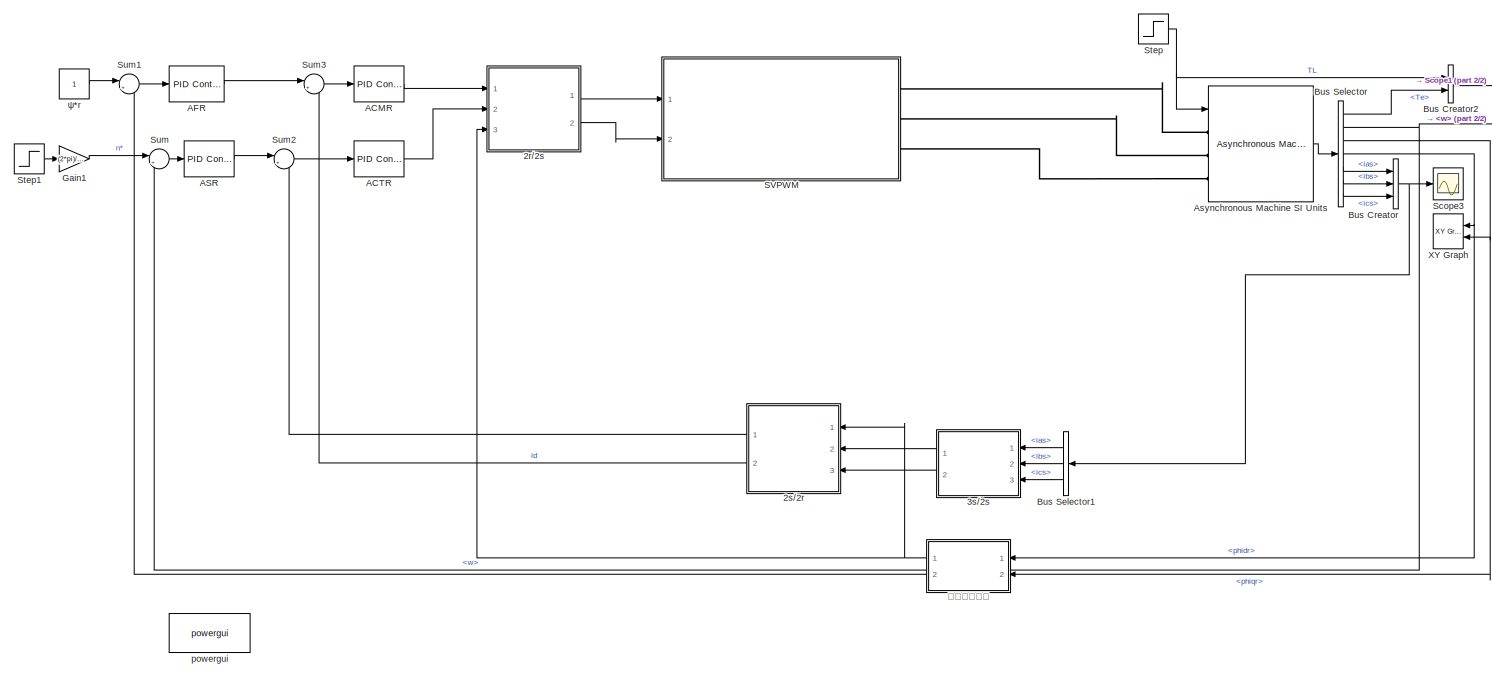
[diagram: root canvas - part 1/2, most of the canvas]
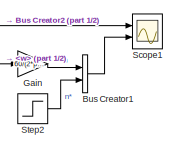
[diagram: root canvas - part 2/2, top right region]
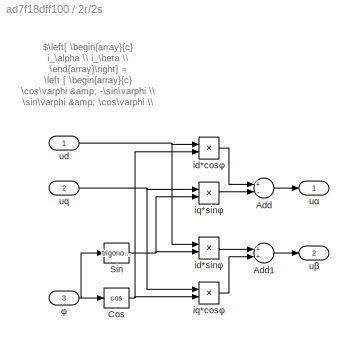
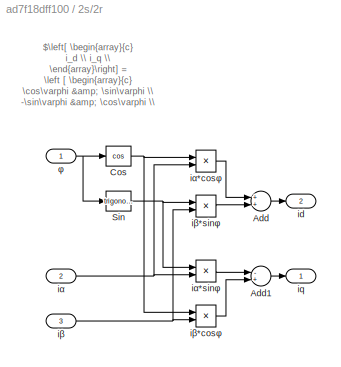
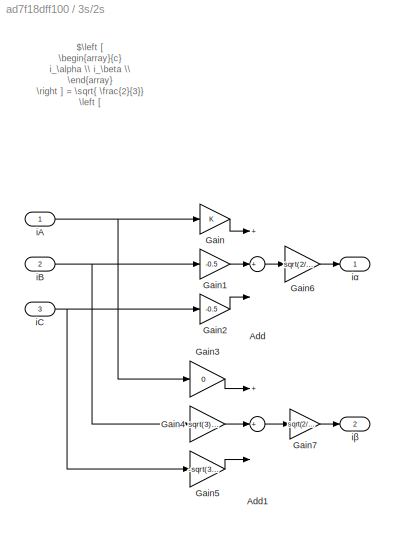
MODEL slx_ad7f18dff100
KIND model
CONFIG AbsTol = auto
CONFIG EnableMultiTasking = off
CONFIG FixedStep = auto
CONFIG MaxStep = 0.00001
CONFIG MinStep = auto
CONFIG RelTol = 1e-3
CONFIG SampleTimeConstraint = Unconstrained
CONFIG Solver = ode23tb
CONFIG SolverName = ode23tb
CONFIG StartTime = 0.0
CONFIG StopTime = 1
BLOCK [SubSystem] 2r//2s
  Ports = [3, 2]
  RequestExecContextInheritance = off
BLOCK [Sum] 2r//2s/Add
  InputSameDT = off
  Inputs = +-
  OutDataTypeStr = Inherit: Inherit via internal rule
  Ports = [2, 1]
  SaturateOnIntegerOverflow = off
BLOCK [Sum] 2r//2s/Add1
  InputSameDT = off
  OutDataTypeStr = Inherit: Inherit via internal rule
  Ports = [2, 1]
  SaturateOnIntegerOverflow = off
BLOCK [Trigonometry] 2r//2s/Cos
  Operator = cos
  Ports = [1, 1]
BLOCK [Trigonometry] 2r//2s/Sin
  Ports = [1, 1]
BLOCK [Product] 2r//2s/id*cosφ
  InputSameDT = off
  OutDataTypeStr = Inherit: Inherit via internal rule
  Ports = [2, 1]
  RndMeth = Floor
  SaturateOnIntegerOverflow = off
BLOCK [Product] 2r//2s/id*sinφ
  InputSameDT = off
  OutDataTypeStr = Inherit: Inherit via internal rule
  Ports = [2, 1]
  RndMeth = Floor
  SaturateOnIntegerOverflow = off
BLOCK [Product] 2r//2s/iq*cosφ
  InputSameDT = off
  OutDataTypeStr = Inherit: Inherit via internal rule
  Ports = [2, 1]
  RndMeth = Floor
  SaturateOnIntegerOverflow = off
BLOCK [Product] 2r//2s/iq*sinφ
  InputSameDT = off
  OutDataTypeStr = Inherit: Inherit via internal rule
  Ports = [2, 1]
  RndMeth = Floor
  SaturateOnIntegerOverflow = off
BLOCK [Inport] 2r//2s/ud
  IconDisplay = Port number
BLOCK [Inport] 2r//2s/uq
  IconDisplay = Port number
  Port = 2
BLOCK [Outport] 2r//2s/uα
  IconDisplay = Port number
BLOCK [Outport] 2r//2s/uβ
  IconDisplay = Port number
  Port = 2
BLOCK [Inport] 2r//2s/φ
  IconDisplay = Port number
  Port = 3
BLOCK [SubSystem] 2s//2r
  Ports = [3, 2]
  RequestExecContextInheritance = off
BLOCK [Sum] 2s//2r/Add
  InputSameDT = off
  OutDataTypeStr = Inherit: Inherit via internal rule
  Ports = [2, 1]
  SaturateOnIntegerOverflow = off
BLOCK [Sum] 2s//2r/Add1
  InputSameDT = off
  Inputs = -+
  OutDataTypeStr = Inherit: Inherit via internal rule
  Ports = [2, 1]
  SaturateOnIntegerOverflow = off
BLOCK [Trigonometry] 2s//2r/Cos
  Operator = cos
  Ports = [1, 1]
BLOCK [Trigonometry] 2s//2r/Sin
  Ports = [1, 1]
BLOCK [Outport] 2s//2r/id
  IconDisplay = Port number
  Port = 2
BLOCK [Outport] 2s//2r/iq
  IconDisplay = Port number
BLOCK [Inport] 2s//2r/iα
  IconDisplay = Port number
  Port = 2
BLOCK [Product] 2s//2r/iα*cosφ
  InputSameDT = off
  OutDataTypeStr = Inherit: Inherit via internal rule
  Ports = [2, 1]
  RndMeth = Floor
  SaturateOnIntegerOverflow = off
BLOCK [Product] 2s//2r/iα*sinφ
  InputSameDT = off
  OutDataTypeStr = Inherit: Inherit via internal rule
  Ports = [2, 1]
  RndMeth = Floor
  SaturateOnIntegerOverflow = off
BLOCK [Inport] 2s//2r/iβ
  IconDisplay = Port number
  Port = 3
BLOCK [Product] 2s//2r/iβ*cosφ
  InputSameDT = off
  OutDataTypeStr = Inherit: Inherit via internal rule
  Ports = [2, 1]
  RndMeth = Floor
  SaturateOnIntegerOverflow = off
BLOCK [Product] 2s//2r/iβ*sinφ
  InputSameDT = off
  OutDataTypeStr = Inherit: Inherit via internal rule
  Ports = [2, 1]
  RndMeth = Floor
  SaturateOnIntegerOverflow = off
BLOCK [Inport] 2s//2r/φ
  IconDisplay = Port number
BLOCK [SubSystem] 3s//2s
  Ports = [3, 2]
  RequestExecContextInheritance = off
BLOCK [Sum] 3s//2s/Add
  InputSameDT = off
  Inputs = 3
  OutDataTypeStr = Inherit: Inherit via internal rule
  Ports = [3, 1]
  SaturateOnIntegerOverflow = off
BLOCK [Sum] 3s//2s/Add1
  InputSameDT = off
  Inputs = 3
  OutDataTypeStr = Inherit: Inherit via internal rule
  Ports = [3, 1]
  SaturateOnIntegerOverflow = off
BLOCK [Gain] 3s//2s/Gain
  OutDataTypeStr = Inherit: Inherit via internal rule
  ParamDataTypeStr = Inherit: Inherit via internal rule
  SaturateOnIntegerOverflow = off
BLOCK [Gain] 3s//2s/Gain1
  Gain = -0.5
  OutDataTypeStr = Inherit: Inherit via internal rule
  ParamDataTypeStr = Inherit: Inherit via internal rule
  SaturateOnIntegerOverflow = off
BLOCK [Gain] 3s//2s/Gain2
  Gain = -0.5
  OutDataTypeStr = Inherit: Inherit via internal rule
  ParamDataTypeStr = Inherit: Inherit via internal rule
  SaturateOnIntegerOverflow = off
BLOCK [Gain] 3s//2s/Gain3
  Gain = 0
  OutDataTypeStr = Inherit: Inherit via internal rule
  ParamDataTypeStr = Inherit: Inherit via internal rule
  SaturateOnIntegerOverflow = off
BLOCK [Gain] 3s//2s/Gain4
  Gain = sqrt(3)/2
  OutDataTypeStr = Inherit: Inherit via internal rule
  ParamDataTypeStr = Inherit: Inherit via internal rule
  SaturateOnIntegerOverflow = off
BLOCK [Gain] 3s//2s/Gain5
  Gain = -sqrt(3)/2
  OutDataTypeStr = Inherit: Inherit via internal rule
  ParamDataTypeStr = Inherit: Inherit via internal rule
  SaturateOnIntegerOverflow = off
BLOCK [Gain] 3s//2s/Gain6
  Gain = sqrt(2/3)
  OutDataTypeStr = Inherit: Inherit via internal rule
  ParamDataTypeStr = Inherit: Inherit via internal rule
  SaturateOnIntegerOverflow = off
BLOCK [Gain] 3s//2s/Gain7
  Gain = sqrt(2/3)
  OutDataTypeStr = Inherit: Inherit via internal rule
  ParamDataTypeStr = Inherit: Inherit via internal rule
  SaturateOnIntegerOverflow = off
BLOCK [Inport] 3s//2s/iA
  IconDisplay = Port number
BLOCK [Inport] 3s//2s/iB
  IconDisplay = Port number
  Port = 2
BLOCK [Inport] 3s//2s/iC
  IconDisplay = Port number
  Port = 3
BLOCK [Outport] 3s//2s/iα
  IconDisplay = Port number
BLOCK [Outport] 3s//2s/iβ
  IconDisplay = Port number
  Port = 2
BLOCK [Reference] ACMR  REF=simulink/Continuous/PID Controller
  Ports = [1, 1]
  SourceBlock = simulink/Continuous/PID Controller
  SourceProductBaseCode = SL
  SourceProductName = Simulink
  SourceType = PID 1dof
BLOCK [Reference] ACTR  REF=simulink/Continuous/PID Controller
  Ports = [1, 1]
  SourceBlock = simulink/Continuous/PID Controller
  SourceProductBaseCode = SL
  SourceProductName = Simulink
  SourceType = PID 1dof
BLOCK [Reference] AFR  REF=simulink/Continuous/PID Controller
  Ports = [1, 1]
  SourceBlock = simulink/Continuous/PID Controller
  SourceProductBaseCode = SL
  SourceProductName = Simulink
  SourceType = PID 1dof
BLOCK [Reference] ASR  REF=simulink/Continuous/PID Controller
  Ports = [1, 1]
  SourceBlock = simulink/Continuous/PID Controller
  SourceProductBaseCode = SL
  SourceProductName = Simulink
  SourceType = PID 1dof
BLOCK [Reference] Asynchronous Machine SI Units  REF=powerlib/Machines/Asynchronous Machine
SI Units
  Ports = [1, 1, 0, 0, 0, 3]
  SourceBlock = powerlib/Machines/Asynchronous Machine\nSI Units
  SourceProductBaseCode = PS
  SourceProductName = Simscape Electrical
  SourceType = Asynchronous Machine
BLOCK [BusCreator] Bus Creator
  DisplayOption = bar
  InheritFromInputs = on
  Inputs = 3
  Ports = [3, 1]
BLOCK [BusCreator] Bus Creator1
  DisplayOption = bar
  InheritFromInputs = on
  Inputs = 2
  Ports = [2, 1]
BLOCK [BusCreator] Bus Creator2
  DisplayOption = bar
  InheritFromInputs = on
  Inputs = 2
  Ports = [2, 1]
BLOCK [BusSelector] Bus Selector
  OutputAsBus = off
  OutputSignals = Te,w,phiqr,phidr,ias,ibs,ics
  Ports = [1, 7]
BLOCK [BusSelector] Bus Selector1
  OutputAsBus = off
  OutputSignals = ias,ibs,ics
  Ports = [1, 3]
BLOCK [Gain] Gain
  Gain = 60/(2*pi)
  OutDataTypeStr = Inherit: Inherit via internal rule
  ParamDataTypeStr = Inherit: Inherit via internal rule
  SaturateOnIntegerOverflow = off
BLOCK [Gain] Gain1
  Gain = (2*pi)/60
  OutDataTypeStr = Inherit: Inherit via internal rule
  ParamDataTypeStr = Inherit: Inherit via internal rule
  SaturateOnIntegerOverflow = off
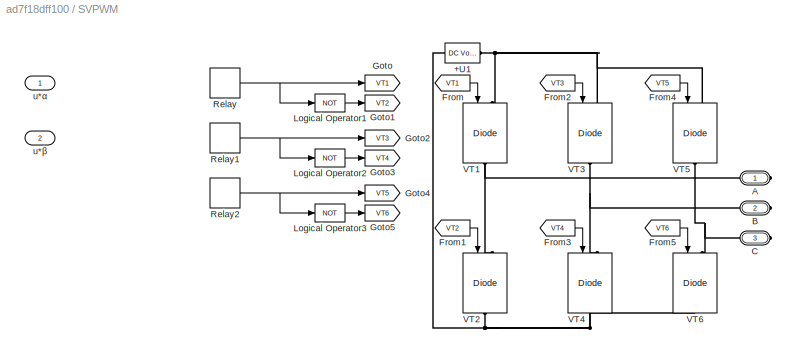
BLOCK [SubSystem] SVPWM
  Ports = [2, 0, 0, 0, 0, 0, 3]
  RequestExecContextInheritance = off
BLOCK [Reference] SVPWM/+U1  REF=powerlib/Electrical
Sources/DC Voltage Source
  Ports = [0, 0, 0, 0, 0, 1, 1]
  SourceBlock = powerlib/Electrical\nSources/DC Voltage Source
  SourceProductBaseCode = PS
  SourceProductName = Simscape Electrical
  SourceType = DC Voltage Source
BLOCK [PMIOPort] SVPWM/A
  Side = Right
BLOCK [PMIOPort] SVPWM/B
  Port = 2
  Side = Right
BLOCK [PMIOPort] SVPWM/C
  Port = 3
  Side = Right
BLOCK [From] SVPWM/From
  GotoTag = VT1
BLOCK [From] SVPWM/From1
  GotoTag = VT2
BLOCK [From] SVPWM/From2
  GotoTag = VT3
BLOCK [From] SVPWM/From3
  GotoTag = VT4
BLOCK [From] SVPWM/From4
  GotoTag = VT5
BLOCK [From] SVPWM/From5
  GotoTag = VT6
BLOCK [Goto] SVPWM/Goto
  GotoTag = VT1
BLOCK [Goto] SVPWM/Goto1
  GotoTag = VT2
BLOCK [Goto] SVPWM/Goto2
  GotoTag = VT3
BLOCK [Goto] SVPWM/Goto3
  GotoTag = VT4
BLOCK [Goto] SVPWM/Goto4
  GotoTag = VT5
BLOCK [Goto] SVPWM/Goto5
  GotoTag = VT6
BLOCK [Logic] SVPWM/Logical Operator1
  AllPortsSameDT = off
  Operator = NOT
  OutDataTypeStr = boolean
  Ports = [1, 1]
BLOCK [Logic] SVPWM/Logical Operator2
  AllPortsSameDT = off
  Operator = NOT
  OutDataTypeStr = boolean
  Ports = [1, 1]
BLOCK [Logic] SVPWM/Logical Operator3
  AllPortsSameDT = off
  Operator = NOT
  OutDataTypeStr = boolean
  Ports = [1, 1]
BLOCK [Relay] SVPWM/Relay
  OffSwitchValue = -band
  OnSwitchValue = band
BLOCK [Relay] SVPWM/Relay1
  OffSwitchValue = -band
  OnSwitchValue = band
BLOCK [Relay] SVPWM/Relay2
  OffSwitchValue = -band
  OnSwitchValue = band
BLOCK [Reference] SVPWM/VT1  REF=powerlib/Power
Electronics/IGBT//Diode
  Ports = [1, 0, 0, 0, 0, 1, 1]
  SourceBlock = powerlib/Power\nElectronics/IGBT//Diode
  SourceProductBaseCode = PS
  SourceProductName = Simscape Electrical
  SourceType = IGBT/Diode
BLOCK [Reference] SVPWM/VT2  REF=powerlib/Power
Electronics/IGBT//Diode
  Ports = [1, 0, 0, 0, 0, 1, 1]
  SourceBlock = powerlib/Power\nElectronics/IGBT//Diode
  SourceProductBaseCode = PS
  SourceProductName = Simscape Electrical
  SourceType = IGBT/Diode
BLOCK [Reference] SVPWM/VT3  REF=powerlib/Power
Electronics/IGBT//Diode
  Ports = [1, 0, 0, 0, 0, 1, 1]
  SourceBlock = powerlib/Power\nElectronics/IGBT//Diode
  SourceProductBaseCode = PS
  SourceProductName = Simscape Electrical
  SourceType = IGBT/Diode
BLOCK [Reference] SVPWM/VT4  REF=powerlib/Power
Electronics/IGBT//Diode
  Ports = [1, 0, 0, 0, 0, 1, 1]
  SourceBlock = powerlib/Power\nElectronics/IGBT//Diode
  SourceProductBaseCode = PS
  SourceProductName = Simscape Electrical
  SourceType = IGBT/Diode
BLOCK [Reference] SVPWM/VT5  REF=powerlib/Power
Electronics/IGBT//Diode
  Ports = [1, 0, 0, 0, 0, 1, 1]
  SourceBlock = powerlib/Power\nElectronics/IGBT//Diode
  SourceProductBaseCode = PS
  SourceProductName = Simscape Electrical
  SourceType = IGBT/Diode
BLOCK [Reference] SVPWM/VT6  REF=powerlib/Power
Electronics/IGBT//Diode
  Ports = [1, 0, 0, 0, 0, 1, 1]
  SourceBlock = powerlib/Power\nElectronics/IGBT//Diode
  SourceProductBaseCode = PS
  SourceProductName = Simscape Electrical
  SourceType = IGBT/Diode
BLOCK [Inport] SVPWM/u*α
  IconDisplay = Port number
BLOCK [Inport] SVPWM/u*β
  IconDisplay = Port number
  Port = 2
BLOCK [Scope] Scope1
  Floating = off
  NumInputPorts = 2
  Ports = [2]
  ScopeSpecificationString = Simulink.scopes.TimeScopeBlockCfg('CurrentConfiguration', extmgr.ConfigurationSet(extmgr.Configuration('Core','General UI',true,'FigureColor',[1 1 1]),extmgr.Configuration('Core','Source UI',true),extmgr.Configuration('Sources','WiredSimulink',true,'DataLoggingVariableName','ScopeData2'),extmgr.Configuration('Visuals','Time Domain',true,'SerializedDisplays',{struct('MinYLimReal','-95.39766','MaxYL...<+2617ch>
BLOCK [Scope] Scope3
  Floating = off
  NumInputPorts = 1
  Ports = [1]
  ScopeSpecificationString = Simulink.scopes.TimeScopeBlockCfg('CurrentConfiguration', extmgr.ConfigurationSet(extmgr.Configuration('Core','General UI',true,'FigureColor',[1 1 1]),extmgr.Configuration('Core','Source UI',true),extmgr.Configuration('Sources','WiredSimulink',true,'DataLoggingVariableName','ScopeData1'),extmgr.Configuration('Visuals','Time Domain',true,'SerializedDisplays',{struct('MinYLimReal','-52.17199','MaxYL...<+1976ch>
BLOCK [Step] Step
  After = TN
  Time = 0.4
  VectorParams1D = off
  ZeroCross = off
BLOCK [Step] Step1
  After = 0
  Before = 1000
  SampleTime = 0
  Time = 0.6
BLOCK [Step] Step2
  After = 0
  Before = 1000
  SampleTime = 0
  Time = 0.6
BLOCK [Sum] Sum
  IconShape = round
  InputSameDT = off
  Inputs = |+-
  OutDataTypeStr = Inherit: Inherit via internal rule
  Ports = [2, 1]
  SaturateOnIntegerOverflow = off
BLOCK [Sum] Sum1
  IconShape = round
  InputSameDT = off
  Inputs = |+-
  OutDataTypeStr = Inherit: Inherit via internal rule
  Ports = [2, 1]
  SaturateOnIntegerOverflow = off
BLOCK [Sum] Sum2
  IconShape = round
  InputSameDT = off
  Inputs = |+-
  OutDataTypeStr = Inherit: Inherit via internal rule
  Ports = [2, 1]
  SaturateOnIntegerOverflow = off
BLOCK [Sum] Sum3
  IconShape = round
  InputSameDT = off
  Inputs = |+-
  OutDataTypeStr = Inherit: Inherit via internal rule
  Ports = [2, 1]
  SaturateOnIntegerOverflow = off
BLOCK [Reference] XY Graph  REF=simulink/Sinks/XY Graph
  Ports = [2]
  SourceBlock = simulink/Sinks/XY Graph
  SourceProductBaseCode = SL
  SourceProductName = Simulink
  SourceType = XY scope.
BLOCK [Reference] powergui  REF=powerlib/powergui
  Ports = []
  Priority = 1
  SourceBlock = powerlib/powergui
  SourceProductBaseCode = PS
  SourceProductName = Simscape Electrical
  SourceType = PSB option menu block
BLOCK [Constant] ψ*r
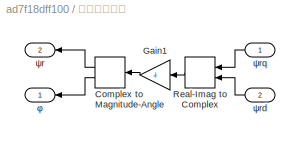
BLOCK [SubSystem] 转子磁链计算
  Ports = [2, 2]
  RequestExecContextInheritance = off
BLOCK [ComplexToMagnitudeAngle] 转子磁链计算/Complex to Magnitude-Angle
  Ports = [1, 2]
BLOCK [Gain] 转子磁链计算/Gain1
  Gain = -i
  OutDataTypeStr = Inherit: Inherit via internal rule
  ParamDataTypeStr = Inherit: Inherit via internal rule
  SaturateOnIntegerOverflow = off
BLOCK [RealImagToComplex] 转子磁链计算/Real-Imag to Complex
  Ports = [2, 1]
BLOCK [Outport] 转子磁链计算/φ
  IconDisplay = Port number
BLOCK [Outport] 转子磁链计算/ψr
  IconDisplay = Port number
  Port = 2
BLOCK [Inport] 转子磁链计算/ψrd
  IconDisplay = Port number
  Port = 2
BLOCK [Inport] 转子磁链计算/ψrq
  IconDisplay = Port number
ANNOTATION 2r//2s: $\left[ \begin{array}{c} i_\alpha \\ i_\beta \\ \end{array}\right] = \left [ \begin{array}{c} \cos\varphi & -\sin\varphi \\ \sin\varphi & \cos\varphi \\ \end{array}\right] \left[ \begin{array}{c} i_d \\ i_q \\ \end{array} \right]$
ANNOTATION 2s//2r: $\left[ \begin{array}{c} i_d \\ i_q \\ \end{array}\right] = \left [ \begin{array}{c} \cos\varphi & \sin\varphi \\ -\sin\varphi & \cos\varphi \\ \end{array}\right] \left[ \begin{array}{c} i_\alpha \\ i_\beta \\ \end{array} \right]$
ANNOTATION 3s//2s: $\left [ \begin{array}{c} i_\alpha \\ i_\beta \\ \end{array} \right ] = \sqrt{ \frac{2}{3}} \left [ \begin{array}{c} 1 & -\frac{1}{2} & -\frac{1}{2} \\ 0 & \frac{\sqrt{3}}{2} & -\frac{\sqrt{3}}{2}\\ \end{array} \right] \left [ \begin{array}{c} i_A \\ i_B \\ i_C \\ \end{array} \right ]$
LINE 2r//2s/Add1:1 -> 2r//2s/uβ:1
LINE 2r//2s/Add:1 -> 2r//2s/uα:1
NET 2r//2s/Cos:1 -> 2r//2s/id*cosφ:2, 2r//2s/iq*cosφ:2
NET 2r//2s/Sin:1 -> 2r//2s/id*sinφ:2, 2r//2s/iq*sinφ:2
LINE 2r//2s/id*cosφ:1 -> 2r//2s/Add:1
LINE 2r//2s/id*sinφ:1 -> 2r//2s/Add1:1
LINE 2r//2s/iq*cosφ:1 -> 2r//2s/Add1:2
LINE 2r//2s/iq*sinφ:1 -> 2r//2s/Add:2
NET 2r//2s/ud:1 -> 2r//2s/id*cosφ:1, 2r//2s/id*sinφ:1
NET 2r//2s/uq:1 -> 2r//2s/iq*cosφ:1, 2r//2s/iq*sinφ:1
NET 2r//2s/φ:1 -> 2r//2s/Cos:1, 2r//2s/Sin:1
LINE 2r//2s:1 -> SVPWM:1
LINE 2r//2s:2 -> SVPWM:2
LINE 2s//2r/Add1:1 -> 2s//2r/iq:1
LINE 2s//2r/Add:1 -> 2s//2r/id:1
NET 2s//2r/Cos:1 -> 2s//2r/iα*cosφ:1, 2s//2r/iβ*cosφ:1
NET 2s//2r/Sin:1 -> 2s//2r/iα*sinφ:1, 2s//2r/iβ*sinφ:1
LINE 2s//2r/iα*cosφ:1 -> 2s//2r/Add:1
LINE 2s//2r/iα*sinφ:1 -> 2s//2r/Add1:1
NET 2s//2r/iα:1 -> 2s//2r/iα*cosφ:2, 2s//2r/iα*sinφ:2
LINE 2s//2r/iβ*cosφ:1 -> 2s//2r/Add1:2
LINE 2s//2r/iβ*sinφ:1 -> 2s//2r/Add:2
NET 2s//2r/iβ:1 -> 2s//2r/iβ*cosφ:2, 2s//2r/iβ*sinφ:2
NET 2s//2r/φ:1 -> 2s//2r/Cos:1, 2s//2r/Sin:1
LINE 2s//2r:1 -> Sum2:2
LINE 2s//2r:2 -> Sum3:2
LINE 3s//2s/Add1:1 -> 3s//2s/Gain7:1
LINE 3s//2s/Add:1 -> 3s//2s/Gain6:1
LINE 3s//2s/Gain1:1 -> 3s//2s/Add:2
LINE 3s//2s/Gain2:1 -> 3s//2s/Add:3
LINE 3s//2s/Gain3:1 -> 3s//2s/Add1:1
LINE 3s//2s/Gain4:1 -> 3s//2s/Add1:2
LINE 3s//2s/Gain5:1 -> 3s//2s/Add1:3
LINE 3s//2s/Gain6:1 -> 3s//2s/iα:1
LINE 3s//2s/Gain7:1 -> 3s//2s/iβ:1
LINE 3s//2s/Gain:1 -> 3s//2s/Add:1
NET 3s//2s/iA:1 -> 3s//2s/Gain3:1, 3s//2s/Gain:1
NET 3s//2s/iB:1 -> 3s//2s/Gain1:1, 3s//2s/Gain4:1
NET 3s//2s/iC:1 -> 3s//2s/Gain2:1, 3s//2s/Gain5:1
LINE 3s//2s:1 -> 2s//2r:2
LINE 3s//2s:2 -> 2s//2r:3
LINE ACMR:1 -> 2r//2s:1
LINE ACTR:1 -> 2r//2s:2
LINE AFR:1 -> Sum3:1
LINE ASR:1 -> Sum2:1
LINE Asynchronous Machine SI Units:1 -> Bus Selector:1
LINE Bus Creator1:1 -> Scope1:2
LINE Bus Creator2:1 -> Scope1:1
NET Bus Creator:1 -> Bus Selector1:1, Scope3:1
LINE Bus Selector1:1 -> 3s//2s:1
LINE Bus Selector1:2 -> 3s//2s:2
LINE Bus Selector1:3 -> 3s//2s:3
LINE Bus Selector:1 -> Bus Creator2:2
NET Bus Selector:2 -> Gain:1, Sum:2
NET Bus Selector:3 -> XY Graph:2, 转子磁链计算:2
NET Bus Selector:4 -> XY Graph:1, 转子磁链计算:1
LINE Bus Selector:5 -> Bus Creator:1
LINE Bus Selector:6 -> Bus Creator:2
LINE Bus Selector:7 -> Bus Creator:3
LINE Gain1:1 -> Sum:1
LINE Gain:1 -> Bus Creator1:1
LINE SVPWM/From1:1 -> SVPWM/VT2:1
LINE SVPWM/From2:1 -> SVPWM/VT3:1
LINE SVPWM/From3:1 -> SVPWM/VT4:1
LINE SVPWM/From4:1 -> SVPWM/VT5:1
LINE SVPWM/From5:1 -> SVPWM/VT6:1
LINE SVPWM/From:1 -> SVPWM/VT1:1
LINE SVPWM/Logical Operator1:1 -> SVPWM/Goto1:1
LINE SVPWM/Logical Operator2:1 -> SVPWM/Goto3:1
LINE SVPWM/Logical Operator3:1 -> SVPWM/Goto5:1
NET SVPWM/Relay1:1 -> SVPWM/Goto2:1, SVPWM/Logical Operator2:1
NET SVPWM/Relay2:1 -> SVPWM/Goto4:1, SVPWM/Logical Operator3:1
NET SVPWM/Relay:1 -> SVPWM/Goto:1, SVPWM/Logical Operator1:1
LINE Step1:1 -> Gain1:1
LINE Step2:1 -> Bus Creator1:2
NET Step:1 -> Asynchronous Machine SI Units:1, Bus Creator2:1
LINE Sum1:1 -> AFR:1
LINE Sum2:1 -> ACTR:1
LINE Sum3:1 -> ACMR:1
LINE Sum:1 -> ASR:1
LINE ψ*r:1 -> Sum1:1
LINE 转子磁链计算/Complex to Magnitude-Angle:1 -> 转子磁链计算/ψr:1
LINE 转子磁链计算/Complex to Magnitude-Angle:2 -> 转子磁链计算/φ:1
LINE 转子磁链计算/Gain1:1 -> 转子磁链计算/Complex to Magnitude-Angle:1
LINE 转子磁链计算/Real-Imag to Complex:1 -> 转子磁链计算/Gain1:1
LINE 转子磁链计算/ψrd:1 -> 转子磁链计算/Real-Imag to Complex:2
LINE 转子磁链计算/ψrq:1 -> 转子磁链计算/Real-Imag to Complex:1
NET 转子磁链计算:1 -> 2r//2s:3, 2s//2r:1
LINE 转子磁链计算:2 -> Sum1:2
PLINE Asynchronous Machine SI Units:LConn1 -- SVPWM:RConn1
PLINE Asynchronous Machine SI Units:LConn2 -- SVPWM:RConn2
PLINE Asynchronous Machine SI Units:LConn3 -- SVPWM:RConn3
PNET net1: SVPWM/+U1:LConn1 -- SVPWM/VT2:RConn1 -- SVPWM/VT4:RConn1 -- SVPWM/VT6:RConn1
PNET net2: SVPWM/+U1:RConn1 -- SVPWM/VT1:LConn1 -- SVPWM/VT3:LConn1 -- SVPWM/VT5:LConn1
PNET net3: SVPWM/A:RConn1 -- SVPWM/VT1:RConn1 -- SVPWM/VT2:LConn1
PNET net4: SVPWM/B:RConn1 -- SVPWM/VT3:RConn1 -- SVPWM/VT4:LConn1
PNET net5: SVPWM/C:RConn1 -- SVPWM/VT5:RConn1 -- SVPWM/VT6:LConn1
note: NET lines group one-source signal fan-out (src -> all destinations, sorted); 1:1 wires keep LINE; PNET lines group multi-terminal physical nets as a canonical sorted terminal list (undirected conserving connections); 2-terminal nets keep the pairwise PLINE form
